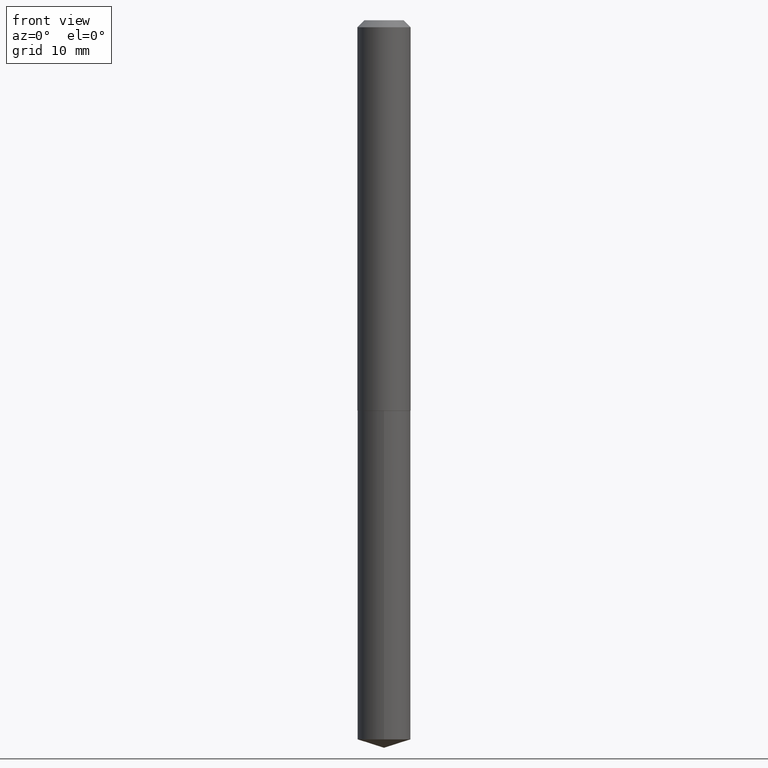
[diagram: clean part render]
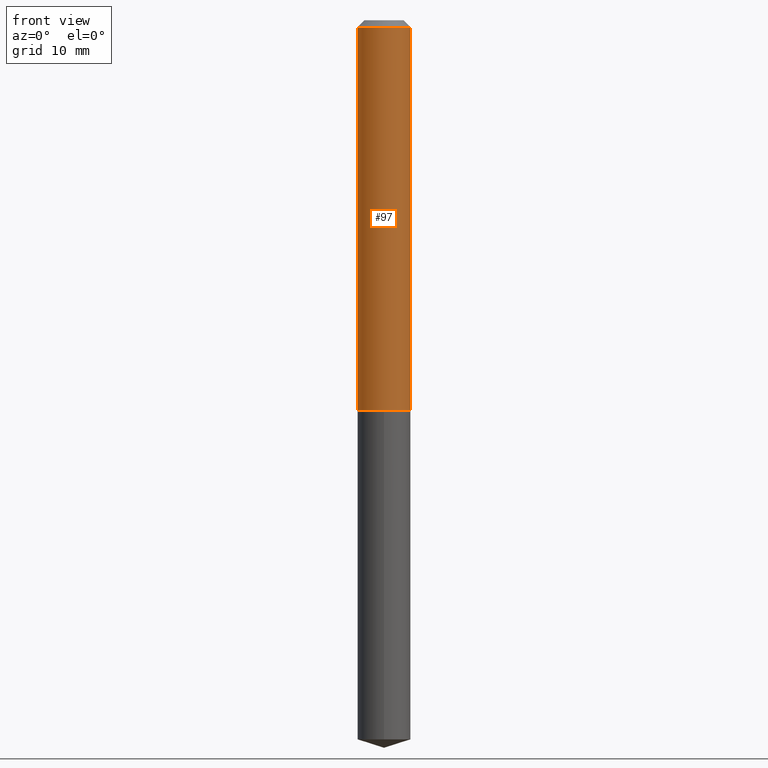
[diagram: same view with one face highlighted and labeled with its STEP entity id]
A machine part, front view. The second image highlights one B-rep face of the part: STEP entity #97.
In plain terms, the highlighted cylindrical surface (edge-blend (fillet) strip) has radius 2.9997 mm, axis along (-0, 0, 1).
Its self-contained STEP definition (entity closure, byte-faithful):
#21 = CIRCLE ( 'NONE', #304, 0.1181000000000002048 ) ;
#28 = EDGE_CURVE ( 'NONE', #331, #301, #279, .T. ) ;
#32 = ORIENTED_EDGE ( 'NONE', *, *, #28, .F. ) ;
#33 = EDGE_CURVE ( 'NONE', #301, #121, #41, .T. ) ;
#37 = DIRECTION ( 'NONE',  ( -2.445468806185136597E-29, 3.491481338843145583E-15, 1.000000000000000000 ) ) ;
#41 = CIRCLE ( 'NONE', #378, 0.1180999999999999966 ) ;
#42 = CARTESIAN_POINT ( 'NONE',  ( 0.1181000000000001077, -8.246878922347488542E-16, 5.758764772215005345E-30 ) ) ;
#52 = VECTOR ( 'NONE', #302, 39.37007874015748143 ) ;
#64 = ORIENTED_EDGE ( 'NONE', *, *, #149, .T. ) ;
#84 = DIRECTION ( 'NONE',  ( -2.445468806185136597E-29, 3.491481338843145583E-15, 1.000000000000000000 ) ) ;
#86 = VERTEX_POINT ( 'NONE', #139 ) ;
#97 = ADVANCED_FACE ( 'NONE', ( #172 ), #167, .T. ) ;
#112 = CARTESIAN_POINT ( 'NONE',  ( 4.234818331670801927E-29, -6.046198234474676063E-15, -1.731700000000000239 ) ) ;
#118 = ORIENTED_EDGE ( 'NONE', *, *, #385, .T. ) ;
#121 = VERTEX_POINT ( 'NONE', #232 ) ;
#131 = DIRECTION ( 'NONE',  ( -2.445468806185136877E-29, 3.491481338843145188E-15, 1.000000000000000000 ) ) ;
#139 = CARTESIAN_POINT ( 'NONE',  ( 0.1181000000000002048, -6.870886126709425903E-15, -1.731700000000000239 ) ) ;
#149 = EDGE_CURVE ( 'NONE', #331, #86, #21, .T. ) ;
#158 = LINE ( 'NONE', #42, #265 ) ;
#161 = DIRECTION ( 'NONE',  ( 1.000000000000000000, -6.982962677686266711E-15, 0.000000000000000000 ) ) ;
#167 = CYLINDRICAL_SURFACE ( 'NONE', #264, 0.1181000000000001077 ) ;
#172 = FACE_OUTER_BOUND ( 'NONE', #339, .T. ) ;
#205 = DIRECTION ( 'NONE',  ( 1.000000000000000000, -6.982962677686266711E-15, 4.876176775795935793E-29 ) ) ;
#207 = DIRECTION ( 'NONE',  ( 1.000000000000000000, -6.982962677686268288E-15, 0.000000000000000000 ) ) ;
#220 = CARTESIAN_POINT ( 'NONE',  ( -0.1181000000000001077, 8.391509709326790846E-16, -5.809262341591049389E-30 ) ) ;
#232 = CARTESIAN_POINT ( 'NONE',  ( 0.1180999999999999966, -9.337966840735971660E-16, -0.03125000000000021511 ) ) ;
#258 = CARTESIAN_POINT ( 'NONE',  ( 0.000000000000000000, 0.000000000000000000, 0.000000000000000000 ) ) ;
#264 = AXIS2_PLACEMENT_3D ( 'NONE', #258, #289, #205 ) ;
#265 = VECTOR ( 'NONE', #131, 39.37007874015748143 ) ;
#279 = LINE ( 'NONE', #220, #52 ) ;
#289 = DIRECTION ( 'NONE',  ( -2.445468806185136597E-29, 3.491481338843145583E-15, 1.000000000000000000 ) ) ;
#301 = VERTEX_POINT ( 'NONE', #342 ) ;
#302 = DIRECTION ( 'NONE',  ( -2.445468806185136877E-29, 3.491481338843145188E-15, 1.000000000000000000 ) ) ;
#304 = AXIS2_PLACEMENT_3D ( 'NONE', #112, #84, #207 ) ;
#307 = CARTESIAN_POINT ( 'NONE',  ( 7.642090019328604414E-31, -1.091087918388490513E-16, -0.03125000000000021511 ) ) ;
#331 = VERTEX_POINT ( 'NONE', #345 ) ;
#339 = EDGE_LOOP ( 'NONE', ( #32, #64, #118, #383 ) ) ;
#342 = CARTESIAN_POINT ( 'NONE',  ( -0.1180999999999999966, -2.238502542224083201E-15, -0.03125000000000021511 ) ) ;
#345 = CARTESIAN_POINT ( 'NONE',  ( -0.1181000000000002048, -5.207047263541997077E-15, -1.731700000000000239 ) ) ;
#378 = AXIS2_PLACEMENT_3D ( 'NONE', #307, #37, #161 ) ;
#383 = ORIENTED_EDGE ( 'NONE', *, *, #33, .F. ) ;
#385 = EDGE_CURVE ( 'NONE', #86, #121, #158, .T. ) ;